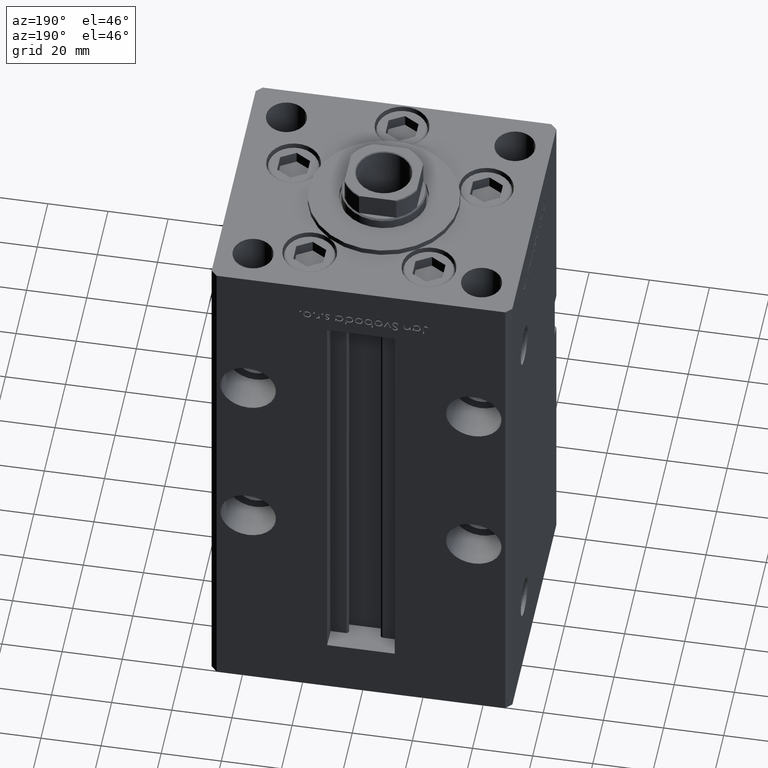
[diagram: clean part render]
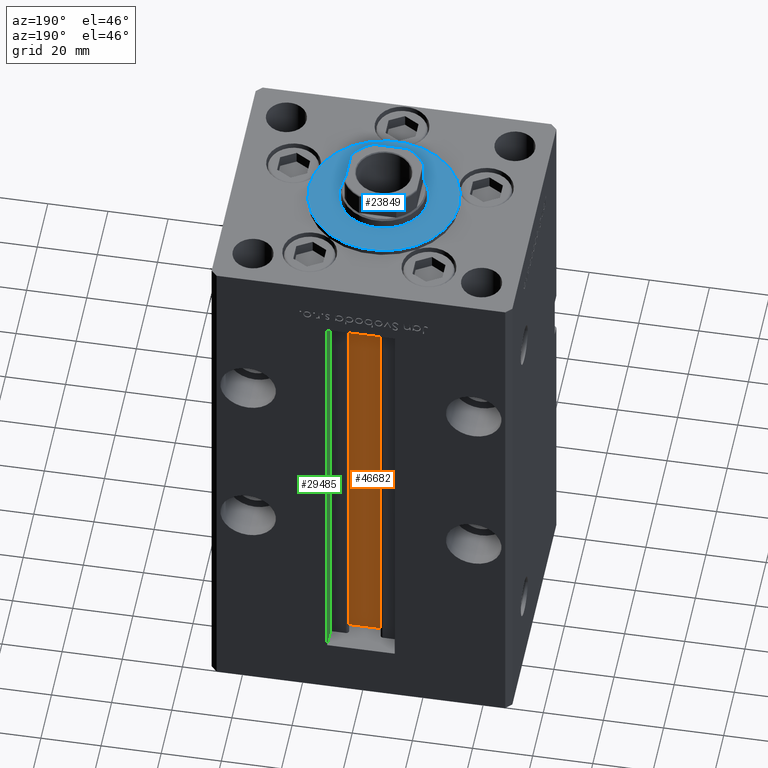
[diagram: same view with three faces highlighted in distinct colors, each labeled with its STEP entity id]
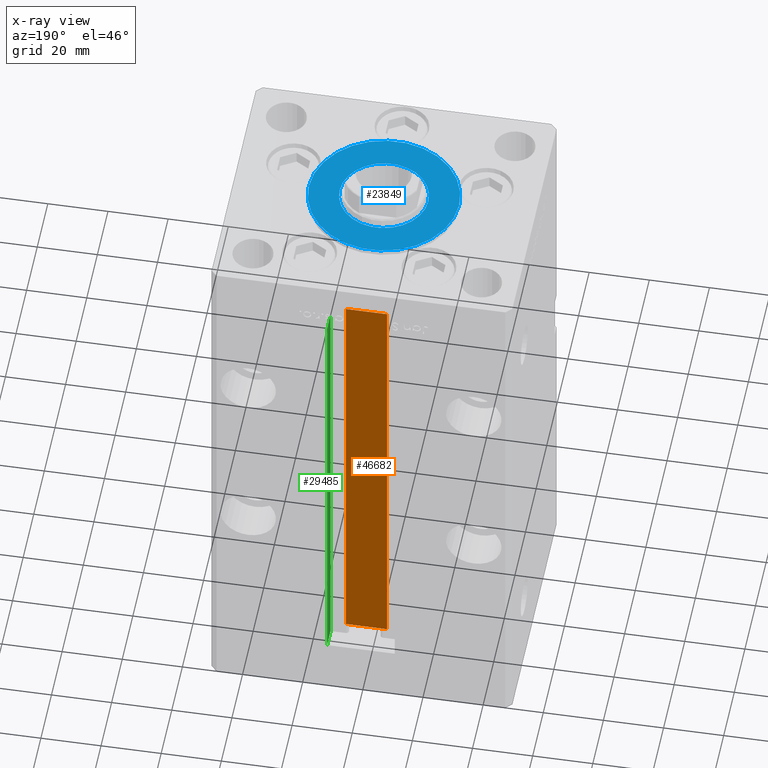
[diagram: x-ray of the same camera — body ghosted, the three highlighted faces saturated]
A machine part, auxiliary view with three faces highlighted in distinct colors.
The next image is the same camera in x-ray (body ghosted, the three faces saturated) — at least one of them is partly hidden behind the body in this view.
Their STEP definitions:

[orange] entity #46682 — the highlighted planar face has unit normal (0, -1, 0).
#1635 = CARTESIAN_POINT ( 'NONE',  ( 0.000000000000000000, 32.99999999999986500, 148.5000000000000000 ) ) ;
#3036 = CARTESIAN_POINT ( 'NONE',  ( 6.876153656360465050, 32.99999999999986500, 0.000000000000000000 ) ) ;
#3643 = ORIENTED_EDGE ( 'NONE', *, *, #51471, .T. ) ;
#6081 = EDGE_CURVE ( 'NONE', #26114, #52827, #37453, .T. ) ;
#7874 = LINE ( 'NONE', #3036, #18750 ) ;
#7968 = DIRECTION ( 'NONE',  ( 0.000000000000000000, -1.000000000000000000, -0.000000000000000000 ) ) ;
#8803 = ORIENTED_EDGE ( 'NONE', *, *, #29176, .F. ) ;
#11199 = EDGE_CURVE ( 'NONE', #36077, #26114, #7874, .T. ) ;
#11611 = DIRECTION ( 'NONE',  ( -0.000000000000000000, -0.000000000000000000, 1.000000000000000000 ) ) ;
#11739 = FACE_OUTER_BOUND ( 'NONE', #23489, .T. ) ;
#12586 = VECTOR ( 'NONE', #34468, 1000.000000000000000 ) ;
#13775 = AXIS2_PLACEMENT_3D ( 'NONE', #19271, #7968, #24113 ) ;
#17322 = VECTOR ( 'NONE', #11611, 1000.000000000000000 ) ;
#18046 = LINE ( 'NONE', #1635, #28786 ) ;
#18750 = VECTOR ( 'NONE', #48515, 1000.000000000000000 ) ;
#19271 = CARTESIAN_POINT ( 'NONE',  ( 6.876153656360465050, 32.99999999999986500, 0.000000000000000000 ) ) ;
#23489 = EDGE_LOOP ( 'NONE', ( #48911, #40711, #3643, #8803 ) ) ;
#23922 = CARTESIAN_POINT ( 'NONE',  ( -6.876153656360465050, 32.99999999999986500, 148.5000000000000000 ) ) ;
#24113 = DIRECTION ( 'NONE',  ( 0.000000000000000000, 0.000000000000000000, -1.000000000000000000 ) ) ;
#26114 = VERTEX_POINT ( 'NONE', #30826 ) ;
#28786 = VECTOR ( 'NONE', #38512, 1000.000000000000000 ) ;
#29176 = EDGE_CURVE ( 'NONE', #52827, #31361, #18046, .T. ) ;
#30826 = CARTESIAN_POINT ( 'NONE',  ( 6.876153656360465050, 32.99999999999986500, 0.000000000000000000 ) ) ;
#31361 = VERTEX_POINT ( 'NONE', #23922 ) ;
#34468 = DIRECTION ( 'NONE',  ( -0.000000000000000000, -0.000000000000000000, 1.000000000000000000 ) ) ;
#36077 = VERTEX_POINT ( 'NONE', #44837 ) ;
#37453 = LINE ( 'NONE', #46581, #12586 ) ;
#38512 = DIRECTION ( 'NONE',  ( -1.000000000000000000, 0.000000000000000000, 0.000000000000000000 ) ) ;
#39145 = CARTESIAN_POINT ( 'NONE',  ( 6.876153656360465050, 32.99999999999986500, 148.5000000000000000 ) ) ;
#40711 = ORIENTED_EDGE ( 'NONE', *, *, #11199, .F. ) ;
#44837 = CARTESIAN_POINT ( 'NONE',  ( -6.876153656360465050, 32.99999999999986500, 0.000000000000000000 ) ) ;
#44841 = PLANE ( 'NONE',  #13775 ) ;
#46581 = CARTESIAN_POINT ( 'NONE',  ( 6.876153656360465050, 32.99999999999986500, 0.000000000000000000 ) ) ;
#46682 = ADVANCED_FACE ( 'NONE', ( #11739 ), #44841, .F. ) ;
#47695 = LINE ( 'NONE', #48488, #17322 ) ;
#48488 = CARTESIAN_POINT ( 'NONE',  ( -6.876153656360465050, 32.99999999999986500, 0.000000000000000000 ) ) ;
#48515 = DIRECTION ( 'NONE',  ( 1.000000000000000000, -0.000000000000000000, -0.000000000000000000 ) ) ;
#48911 = ORIENTED_EDGE ( 'NONE', *, *, #6081, .F. ) ;
#51471 = EDGE_CURVE ( 'NONE', #36077, #31361, #47695, .T. ) ;
#52827 = VERTEX_POINT ( 'NONE', #39145 ) ;

[blue] entity #23849 — the highlighted planar face has unit normal (0, 0, 1).
#223 = CIRCLE ( 'NONE', #20839, 14.75000000000000178 ) ;
#1523 = CARTESIAN_POINT ( 'NONE',  ( 0.000000000000000000, -6.938893903907228378E-15, 2.000000000000000000 ) ) ;
#1590 = DIRECTION ( 'NONE',  ( 0.000000000000000000, 0.000000000000000000, 1.000000000000000000 ) ) ;
#6170 = CARTESIAN_POINT ( 'NONE',  ( 0.000000000000000000, -6.938893903907228378E-15, 2.000000000000000000 ) ) ;
#6499 = PLANE ( 'NONE',  #44969 ) ;
#9579 = AXIS2_PLACEMENT_3D ( 'NONE', #26032, #30327, #21998 ) ;
#11013 = CARTESIAN_POINT ( 'NONE',  ( 25.00000000000000000, -3.877276906038844941E-15, 2.000000000000000000 ) ) ;
#11066 = CARTESIAN_POINT ( 'NONE',  ( 0.000000000000000000, -6.938893903907228378E-15, 2.000000000000000000 ) ) ;
#11247 = CARTESIAN_POINT ( 'NONE',  ( -25.00000000000000000, -6.938893903907228378E-15, 2.000000000000000000 ) ) ;
#11579 = EDGE_CURVE ( 'NONE', #23827, #50582, #46273, .T. ) ;
#14444 = DIRECTION ( 'NONE',  ( 1.000000000000000000, 0.000000000000000000, 0.000000000000000000 ) ) ;
#15101 = DIRECTION ( 'NONE',  ( 1.000000000000000000, 0.000000000000000000, -0.000000000000000000 ) ) ;
#16917 = CIRCLE ( 'NONE', #37560, 25.00000000000000000 ) ;
#17972 = VERTEX_POINT ( 'NONE', #11013 ) ;
#19133 = FACE_BOUND ( 'NONE', #34668, .T. ) ;
#20224 = ORIENTED_EDGE ( 'NONE', *, *, #21240, .F. ) ;
#20839 = AXIS2_PLACEMENT_3D ( 'NONE', #51433, #43345, #50161 ) ;
#21240 = EDGE_CURVE ( 'NONE', #50582, #23827, #223, .T. ) ;
#21998 = DIRECTION ( 'NONE',  ( 1.000000000000000000, 0.000000000000000000, 0.000000000000000000 ) ) ;
#22776 = DIRECTION ( 'NONE',  ( 0.000000000000000000, 0.000000000000000000, 1.000000000000000000 ) ) ;
#23152 = ORIENTED_EDGE ( 'NONE', *, *, #51069, .T. ) ;
#23827 = VERTEX_POINT ( 'NONE', #36093 ) ;
#23849 = ADVANCED_FACE ( 'NONE', ( #19133, #26944 ), #6499, .T. ) ;
#25050 = CARTESIAN_POINT ( 'NONE',  ( -14.75000000000000178, -5.132539875164881787E-15, 2.000000000000000000 ) ) ;
#25883 = VERTEX_POINT ( 'NONE', #11247 ) ;
#26032 = CARTESIAN_POINT ( 'NONE',  ( 0.000000000000000000, -6.938893903907228378E-15, 2.000000000000000000 ) ) ;
#26072 = DIRECTION ( 'NONE',  ( 1.000000000000000000, 0.000000000000000000, 0.000000000000000000 ) ) ;
#26944 = FACE_OUTER_BOUND ( 'NONE', #52212, .T. ) ;
#30186 = CIRCLE ( 'NONE', #9579, 25.00000000000000000 ) ;
#30327 = DIRECTION ( 'NONE',  ( 0.000000000000000000, 0.000000000000000000, 1.000000000000000000 ) ) ;
#31247 = DIRECTION ( 'NONE',  ( 0.000000000000000000, 0.000000000000000000, 1.000000000000000000 ) ) ;
#31621 = AXIS2_PLACEMENT_3D ( 'NONE', #6170, #1590, #26072 ) ;
#34124 = EDGE_CURVE ( 'NONE', #17972, #25883, #16917, .T. ) ;
#34668 = EDGE_LOOP ( 'NONE', ( #45044, #20224 ) ) ;
#36093 = CARTESIAN_POINT ( 'NONE',  ( 14.75000000000000178, -6.938893903907228378E-15, 2.000000000000000000 ) ) ;
#37560 = AXIS2_PLACEMENT_3D ( 'NONE', #1523, #22776, #14444 ) ;
#43345 = DIRECTION ( 'NONE',  ( 0.000000000000000000, 0.000000000000000000, 1.000000000000000000 ) ) ;
#44969 = AXIS2_PLACEMENT_3D ( 'NONE', #11066, #31247, #15101 ) ;
#45044 = ORIENTED_EDGE ( 'NONE', *, *, #11579, .F. ) ;
#46273 = CIRCLE ( 'NONE', #31621, 14.75000000000000178 ) ;
#46948 = ORIENTED_EDGE ( 'NONE', *, *, #34124, .T. ) ;
#50161 = DIRECTION ( 'NONE',  ( 1.000000000000000000, 0.000000000000000000, 0.000000000000000000 ) ) ;
#50582 = VERTEX_POINT ( 'NONE', #25050 ) ;
#51069 = EDGE_CURVE ( 'NONE', #25883, #17972, #30186, .T. ) ;
#51433 = CARTESIAN_POINT ( 'NONE',  ( 0.000000000000000000, -6.938893903907228378E-15, 2.000000000000000000 ) ) ;
#52212 = EDGE_LOOP ( 'NONE', ( #23152, #46948 ) ) ;

[green] entity #29485 — the highlighted planar face has unit normal (1, 0, 0).
#276 = EDGE_CURVE ( 'NONE', #28905, #39931, #7416, .T. ) ;
#1065 = CARTESIAN_POINT ( 'NONE',  ( 11.24999999999999645, 43.50000000000000000, 0.000000000000000000 ) ) ;
#1092 = CARTESIAN_POINT ( 'NONE',  ( 11.24999999999999645, 37.00000000000000000, 148.5000000000000000 ) ) ;
#1596 = VECTOR ( 'NONE', #39250, 1000.000000000000000 ) ;
#3983 = VECTOR ( 'NONE', #28476, 1000.000000000000000 ) ;
#4096 = VERTEX_POINT ( 'NONE', #1092 ) ;
#4681 = CARTESIAN_POINT ( 'NONE',  ( 11.24999999999998934, 43.50000000000000000, 148.5000000000000000 ) ) ;
#6948 = CARTESIAN_POINT ( 'NONE',  ( 11.24999999999999645, 0.000000000000000000, 148.5000000000000000 ) ) ;
#7416 = LINE ( 'NONE', #15491, #21948 ) ;
#7733 = ORIENTED_EDGE ( 'NONE', *, *, #31447, .F. ) ;
#9051 = AXIS2_PLACEMENT_3D ( 'NONE', #50294, #13418, #17978 ) ;
#10074 = VERTEX_POINT ( 'NONE', #4681 ) ;
#11679 = EDGE_LOOP ( 'NONE', ( #7733, #39256, #16009, #38738 ) ) ;
#13418 = DIRECTION ( 'NONE',  ( 1.000000000000000000, -0.000000000000000000, 0.000000000000000000 ) ) ;
#13575 = VECTOR ( 'NONE', #35556, 1000.000000000000000 ) ;
#15491 = CARTESIAN_POINT ( 'NONE',  ( 11.24999999999999645, 37.00000000000000000, 0.000000000000000000 ) ) ;
#16009 = ORIENTED_EDGE ( 'NONE', *, *, #41555, .T. ) ;
#17978 = DIRECTION ( 'NONE',  ( 0.000000000000000000, 0.000000000000000000, -1.000000000000000000 ) ) ;
#18353 = LINE ( 'NONE', #19140, #13575 ) ;
#19140 = CARTESIAN_POINT ( 'NONE',  ( 11.24999999999999645, 37.00000000000000000, 0.000000000000000000 ) ) ;
#21948 = VECTOR ( 'NONE', #52373, 1000.000000000000000 ) ;
#22942 = CARTESIAN_POINT ( 'NONE',  ( 11.24999999999999645, 37.00000000000000000, 0.000000000000000000 ) ) ;
#24709 = CARTESIAN_POINT ( 'NONE',  ( 11.24999999999999645, 43.50000000000000000, 0.000000000000000000 ) ) ;
#26603 = LINE ( 'NONE', #6948, #1596 ) ;
#28476 = DIRECTION ( 'NONE',  ( -0.000000000000000000, -0.000000000000000000, 1.000000000000000000 ) ) ;
#28905 = VERTEX_POINT ( 'NONE', #22942 ) ;
#29012 = LINE ( 'NONE', #24709, #3983 ) ;
#29485 = ADVANCED_FACE ( 'NONE', ( #42212 ), #47054, .F. ) ;
#31447 = EDGE_CURVE ( 'NONE', #39931, #10074, #29012, .T. ) ;
#35556 = DIRECTION ( 'NONE',  ( -0.000000000000000000, -0.000000000000000000, 1.000000000000000000 ) ) ;
#38355 = EDGE_CURVE ( 'NONE', #10074, #4096, #26603, .T. ) ;
#38738 = ORIENTED_EDGE ( 'NONE', *, *, #38355, .F. ) ;
#39250 = DIRECTION ( 'NONE',  ( -0.000000000000000000, -1.000000000000000000, 0.000000000000000000 ) ) ;
#39256 = ORIENTED_EDGE ( 'NONE', *, *, #276, .F. ) ;
#39931 = VERTEX_POINT ( 'NONE', #1065 ) ;
#41555 = EDGE_CURVE ( 'NONE', #28905, #4096, #18353, .T. ) ;
#42212 = FACE_OUTER_BOUND ( 'NONE', #11679, .T. ) ;
#47054 = PLANE ( 'NONE',  #9051 ) ;
#50294 = CARTESIAN_POINT ( 'NONE',  ( 11.24999999999999645, 37.00000000000000000, 0.000000000000000000 ) ) ;
#52373 = DIRECTION ( 'NONE',  ( 0.000000000000000000, 1.000000000000000000, 0.000000000000000000 ) ) ;